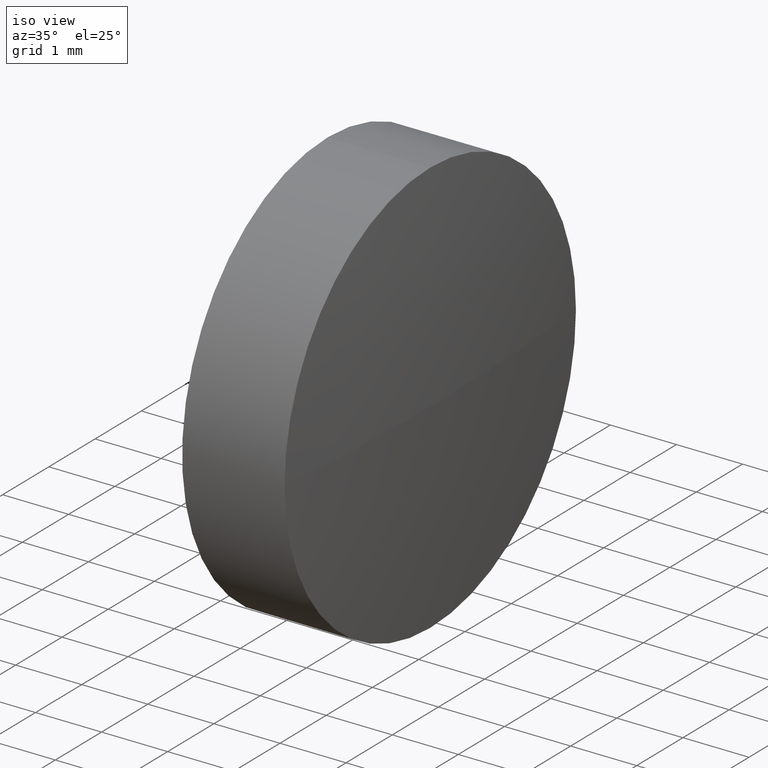
[diagram: clean part render]
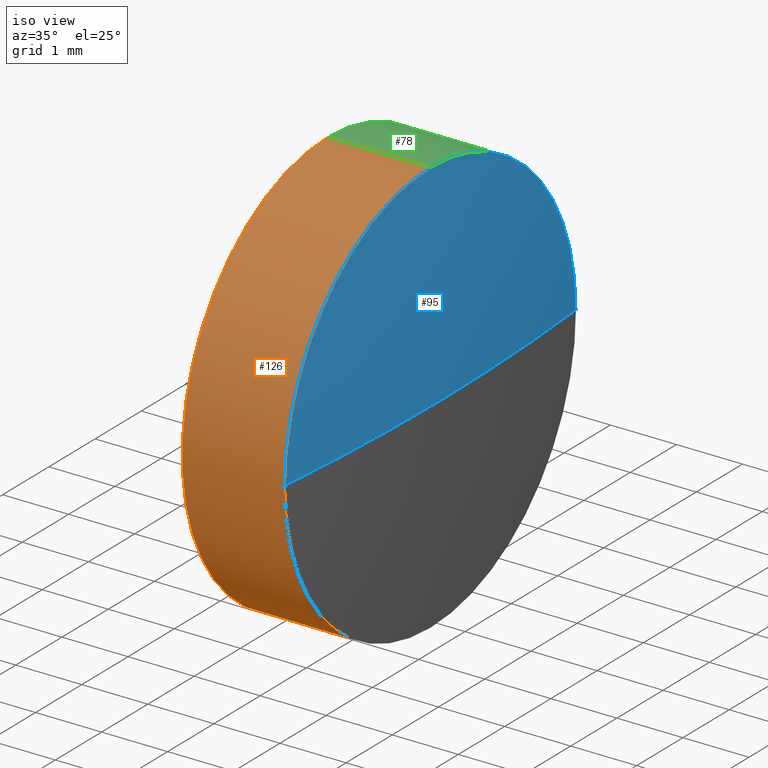
[diagram: same view with three faces highlighted in distinct colors, each labeled with its STEP entity id]
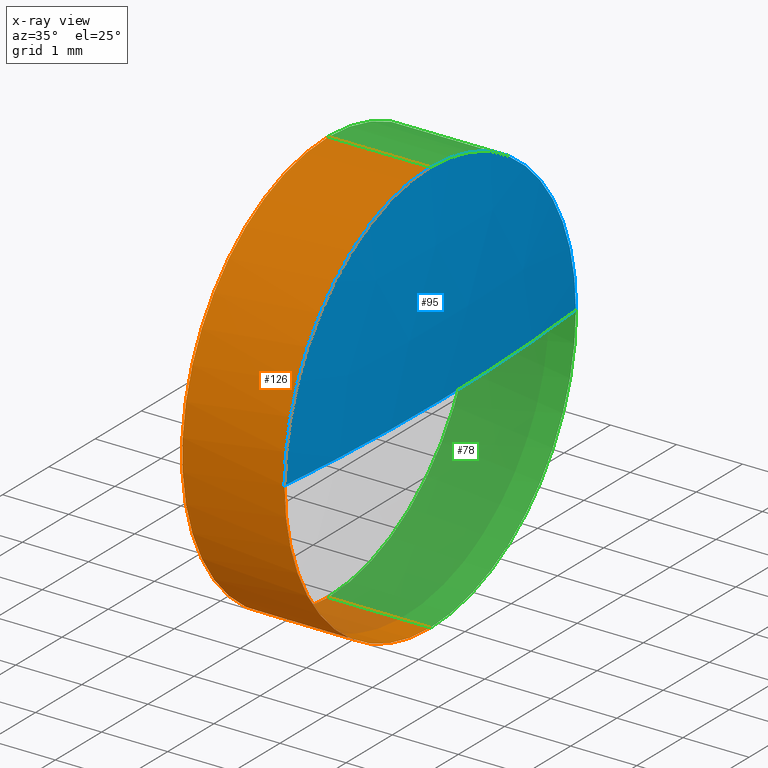
[diagram: x-ray of the same camera — body ghosted, the three highlighted faces saturated]
A machine part, iso view with three faces highlighted in distinct colors.
The next image is the same camera in x-ray (body ghosted, the three faces saturated) — at least one of them is partly hidden behind the body in this view.
Their STEP definitions:

[orange] entity #126 — the highlighted cylindrical surface (partial cylindrical patch) has radius 3.15 mm, axis along (-1, -0, -0).
#3 = LINE ( 'NONE', #32, #106 ) ;
#4 = CARTESIAN_POINT ( 'NONE',  ( 421.2035266146245400, 44.60173696061082200, -3.149999999999999900 ) ) ;
#6 = DIRECTION ( 'NONE',  ( 0.0000000000000000000, 0.0000000000000000000, 1.000000000000000000 ) ) ;
#8 = VERTEX_POINT ( 'NONE', #11 ) ;
#9 = ORIENTED_EDGE ( 'NONE', *, *, #123, .T. ) ;
#10 = EDGE_CURVE ( 'NONE', #87, #16, #42, .T. ) ;
#11 = CARTESIAN_POINT ( 'NONE',  ( 422.7535266146244900, 41.45173696061073100, -3.857637417314108000E-016 ) ) ;
#15 = VERTEX_POINT ( 'NONE', #177 ) ;
#16 = VERTEX_POINT ( 'NONE', #142 ) ;
#18 = DIRECTION ( 'NONE',  ( -1.000000000000000000, -0.0000000000000000000, -0.0000000000000000000 ) ) ;
#23 = AXIS2_PLACEMENT_3D ( 'NONE', #179, #47, #157 ) ;
#28 = CARTESIAN_POINT ( 'NONE',  ( 422.7535266146244900, 44.60173696061082200, -3.149999999999999900 ) ) ;
#29 = CIRCLE ( 'NONE', #127, 3.149999999999999900 ) ;
#32 = CARTESIAN_POINT ( 'NONE',  ( 420.3978162020825400, 44.60173696061082200, -3.149999999999999900 ) ) ;
#33 = VERTEX_POINT ( 'NONE', #28 ) ;
#40 = LINE ( 'NONE', #72, #53 ) ;
#42 = CIRCLE ( 'NONE', #23, 3.149999999999999900 ) ;
#47 = DIRECTION ( 'NONE',  ( -1.000000000000000000, -0.0000000000000000000, -0.0000000000000000000 ) ) ;
#48 = CARTESIAN_POINT ( 'NONE',  ( 422.7535266146244900, 44.60173696061082200, 0.0000000000000000000 ) ) ;
#53 = VECTOR ( 'NONE', #149, 1000.000000000000000 ) ;
#60 = AXIS2_PLACEMENT_3D ( 'NONE', #120, #181, #6 ) ;
#65 = DIRECTION ( 'NONE',  ( 0.0000000000000000000, 0.0000000000000000000, 1.000000000000000000 ) ) ;
#68 = CYLINDRICAL_SURFACE ( 'NONE', #60, 3.149999999999999900 ) ;
#72 = CARTESIAN_POINT ( 'NONE',  ( 420.3978162020825400, 44.60173696061082200, 3.149999999999999900 ) ) ;
#82 = CIRCLE ( 'NONE', #110, 3.149999999999999900 ) ;
#87 = VERTEX_POINT ( 'NONE', #4 ) ;
#88 = CARTESIAN_POINT ( 'NONE',  ( 422.7535266146244900, 44.60173696061082200, 0.0000000000000000000 ) ) ;
#94 = ORIENTED_EDGE ( 'NONE', *, *, #10, .F. ) ;
#96 = ORIENTED_EDGE ( 'NONE', *, *, #150, .T. ) ;
#102 = DIRECTION ( 'NONE',  ( -1.000000000000000000, -0.0000000000000000000, -0.0000000000000000000 ) ) ;
#106 = VECTOR ( 'NONE', #136, 1000.000000000000000 ) ;
#110 = AXIS2_PLACEMENT_3D ( 'NONE', #48, #102, #65 ) ;
#112 = EDGE_CURVE ( 'NONE', #8, #15, #82, .T. ) ;
#115 = FACE_OUTER_BOUND ( 'NONE', #169, .T. ) ;
#119 = ORIENTED_EDGE ( 'NONE', *, *, #172, .F. ) ;
#120 = CARTESIAN_POINT ( 'NONE',  ( 420.3978162020825400, 44.60173696061082200, 0.0000000000000000000 ) ) ;
#123 = EDGE_CURVE ( 'NONE', #33, #8, #29, .T. ) ;
#126 = ADVANCED_FACE ( 'NONE', ( #115 ), #68, .T. ) ;
#127 = AXIS2_PLACEMENT_3D ( 'NONE', #88, #18, #163 ) ;
#135 = ORIENTED_EDGE ( 'NONE', *, *, #112, .T. ) ;
#136 = DIRECTION ( 'NONE',  ( -1.000000000000000000, -0.0000000000000000000, -0.0000000000000000000 ) ) ;
#142 = CARTESIAN_POINT ( 'NONE',  ( 421.2035266146245400, 44.60173696061082200, 3.149999999999999900 ) ) ;
#149 = DIRECTION ( 'NONE',  ( -1.000000000000000000, -0.0000000000000000000, -0.0000000000000000000 ) ) ;
#150 = EDGE_CURVE ( 'NONE', #15, #16, #40, .T. ) ;
#157 = DIRECTION ( 'NONE',  ( 0.0000000000000000000, 0.0000000000000000000, 1.000000000000000000 ) ) ;
#163 = DIRECTION ( 'NONE',  ( 0.0000000000000000000, 0.0000000000000000000, 1.000000000000000000 ) ) ;
#169 = EDGE_LOOP ( 'NONE', ( #119, #9, #135, #96, #94 ) ) ;
#172 = EDGE_CURVE ( 'NONE', #33, #87, #3, .T. ) ;
#177 = CARTESIAN_POINT ( 'NONE',  ( 422.7535266146244900, 44.60173696061082200, 3.149999999999999900 ) ) ;
#179 = CARTESIAN_POINT ( 'NONE',  ( 421.2035266146245400, 44.60173696061082200, 0.0000000000000000000 ) ) ;
#181 = DIRECTION ( 'NONE',  ( -1.000000000000000000, -0.0000000000000000000, -0.0000000000000000000 ) ) ;

[blue] entity #95 — the highlighted spherical surface has radius 33.15 mm.
#1 = AXIS2_PLACEMENT_3D ( 'NONE', #105, #165, #7 ) ;
#7 = DIRECTION ( 'NONE',  ( 0.0000000000000000000, 1.000000000000000000, 1.224646799147353200E-016 ) ) ;
#8 = VERTEX_POINT ( 'NONE', #11 ) ;
#11 = CARTESIAN_POINT ( 'NONE',  ( 422.7535266146244900, 41.45173696061073100, -3.857637417314108000E-016 ) ) ;
#14 = FACE_OUTER_BOUND ( 'NONE', #90, .T. ) ;
#15 = VERTEX_POINT ( 'NONE', #177 ) ;
#20 = ORIENTED_EDGE ( 'NONE', *, *, #140, .F. ) ;
#25 = ORIENTED_EDGE ( 'NONE', *, *, #103, .T. ) ;
#27 = AXIS2_PLACEMENT_3D ( 'NONE', #175, #80, #50 ) ;
#37 = DIRECTION ( 'NONE',  ( 1.000000000000000000, 0.0000000000000000000, 0.0000000000000000000 ) ) ;
#39 = AXIS2_PLACEMENT_3D ( 'NONE', #183, #43, #89 ) ;
#43 = DIRECTION ( 'NONE',  ( -1.000000000000000000, -0.0000000000000000000, -0.0000000000000000000 ) ) ;
#48 = CARTESIAN_POINT ( 'NONE',  ( 422.7535266146244900, 44.60173696061082200, 0.0000000000000000000 ) ) ;
#49 = VERTEX_POINT ( 'NONE', #129 ) ;
#50 = DIRECTION ( 'NONE',  ( 0.0000000000000000000, 1.000000000000000000, 0.0000000000000000000 ) ) ;
#64 = CIRCLE ( 'NONE', #39, 3.149999999999999900 ) ;
#65 = DIRECTION ( 'NONE',  ( 0.0000000000000000000, 0.0000000000000000000, 1.000000000000000000 ) ) ;
#80 = DIRECTION ( 'NONE',  ( -0.0000000000000000000, 0.0000000000000000000, -1.000000000000000000 ) ) ;
#82 = CIRCLE ( 'NONE', #110, 3.149999999999999900 ) ;
#89 = DIRECTION ( 'NONE',  ( 0.0000000000000000000, 0.0000000000000000000, 1.000000000000000000 ) ) ;
#90 = EDGE_LOOP ( 'NONE', ( #20, #25, #174, #122 ) ) ;
#93 = CIRCLE ( 'NONE', #1, 33.15000000000124900 ) ;
#95 = ADVANCED_FACE ( 'NONE', ( #14 ), #124, .T. ) ;
#97 = AXIS2_PLACEMENT_3D ( 'NONE', #116, #130, #37 ) ;
#102 = DIRECTION ( 'NONE',  ( -1.000000000000000000, -0.0000000000000000000, -0.0000000000000000000 ) ) ;
#103 = EDGE_CURVE ( 'NONE', #161, #49, #154, .T. ) ;
#105 = CARTESIAN_POINT ( 'NONE',  ( 389.7535266146232400, 44.60173696061069400, 0.0000000000000000000 ) ) ;
#110 = AXIS2_PLACEMENT_3D ( 'NONE', #48, #102, #65 ) ;
#112 = EDGE_CURVE ( 'NONE', #8, #15, #82, .T. ) ;
#116 = CARTESIAN_POINT ( 'NONE',  ( 389.7535266146232400, 44.60173696061069400, 0.0000000000000000000 ) ) ;
#122 = ORIENTED_EDGE ( 'NONE', *, *, #112, .F. ) ;
#124 = SPHERICAL_SURFACE ( 'NONE', #27, 33.15000000000124900 ) ;
#129 = CARTESIAN_POINT ( 'NONE',  ( 422.7535266146244900, 47.75173696061077800, 0.0000000000000000000 ) ) ;
#130 = DIRECTION ( 'NONE',  ( -0.0000000000000000000, 0.0000000000000000000, 1.000000000000000000 ) ) ;
#140 = EDGE_CURVE ( 'NONE', #161, #8, #93, .T. ) ;
#154 = CIRCLE ( 'NONE', #97, 33.15000000000123500 ) ;
#161 = VERTEX_POINT ( 'NONE', #167 ) ;
#165 = DIRECTION ( 'NONE',  ( 0.0000000000000000000, 1.224646799147353200E-016, -1.000000000000000000 ) ) ;
#167 = CARTESIAN_POINT ( 'NONE',  ( 422.9035266146244700, 44.60173696061069400, 0.0000000000000000000 ) ) ;
#174 = ORIENTED_EDGE ( 'NONE', *, *, #182, .F. ) ;
#175 = CARTESIAN_POINT ( 'NONE',  ( 389.7535266146232400, 44.60173696061069400, 0.0000000000000000000 ) ) ;
#177 = CARTESIAN_POINT ( 'NONE',  ( 422.7535266146244900, 44.60173696061082200, 3.149999999999999900 ) ) ;
#182 = EDGE_CURVE ( 'NONE', #15, #49, #64, .T. ) ;
#183 = CARTESIAN_POINT ( 'NONE',  ( 422.7535266146244900, 44.60173696061082200, 0.0000000000000000000 ) ) ;

[green] entity #78 — the highlighted cylindrical surface (partial cylindrical patch) has radius 3.15 mm, axis along (-1, -0, -0).
#3 = LINE ( 'NONE', #32, #106 ) ;
#4 = CARTESIAN_POINT ( 'NONE',  ( 421.2035266146245400, 44.60173696061082200, -3.149999999999999900 ) ) ;
#15 = VERTEX_POINT ( 'NONE', #177 ) ;
#16 = VERTEX_POINT ( 'NONE', #142 ) ;
#21 = CARTESIAN_POINT ( 'NONE',  ( 422.7535266146244900, 44.60173696061082200, 0.0000000000000000000 ) ) ;
#22 = CARTESIAN_POINT ( 'NONE',  ( 421.2035266146245400, 44.60173696061082200, 0.0000000000000000000 ) ) ;
#28 = CARTESIAN_POINT ( 'NONE',  ( 422.7535266146244900, 44.60173696061082200, -3.149999999999999900 ) ) ;
#32 = CARTESIAN_POINT ( 'NONE',  ( 420.3978162020825400, 44.60173696061082200, -3.149999999999999900 ) ) ;
#33 = VERTEX_POINT ( 'NONE', #28 ) ;
#36 = CYLINDRICAL_SURFACE ( 'NONE', #84, 3.149999999999999900 ) ;
#39 = AXIS2_PLACEMENT_3D ( 'NONE', #183, #43, #89 ) ;
#40 = LINE ( 'NONE', #72, #53 ) ;
#43 = DIRECTION ( 'NONE',  ( -1.000000000000000000, -0.0000000000000000000, -0.0000000000000000000 ) ) ;
#46 = CIRCLE ( 'NONE', #73, 3.149999999999999900 ) ;
#49 = VERTEX_POINT ( 'NONE', #129 ) ;
#53 = VECTOR ( 'NONE', #149, 1000.000000000000000 ) ;
#54 = ORIENTED_EDGE ( 'NONE', *, *, #150, .F. ) ;
#55 = DIRECTION ( 'NONE',  ( 0.0000000000000000000, 0.0000000000000000000, 1.000000000000000000 ) ) ;
#56 = DIRECTION ( 'NONE',  ( -1.000000000000000000, -0.0000000000000000000, -0.0000000000000000000 ) ) ;
#64 = CIRCLE ( 'NONE', #39, 3.149999999999999900 ) ;
#67 = ORIENTED_EDGE ( 'NONE', *, *, #143, .T. ) ;
#71 = DIRECTION ( 'NONE',  ( 0.0000000000000000000, 0.0000000000000000000, 1.000000000000000000 ) ) ;
#72 = CARTESIAN_POINT ( 'NONE',  ( 420.3978162020825400, 44.60173696061082200, 3.149999999999999900 ) ) ;
#73 = AXIS2_PLACEMENT_3D ( 'NONE', #22, #56, #71 ) ;
#78 = ADVANCED_FACE ( 'NONE', ( #86 ), #36, .T. ) ;
#84 = AXIS2_PLACEMENT_3D ( 'NONE', #178, #146, #98 ) ;
#86 = FACE_OUTER_BOUND ( 'NONE', #186, .T. ) ;
#87 = VERTEX_POINT ( 'NONE', #4 ) ;
#89 = DIRECTION ( 'NONE',  ( 0.0000000000000000000, 0.0000000000000000000, 1.000000000000000000 ) ) ;
#98 = DIRECTION ( 'NONE',  ( 0.0000000000000000000, 0.0000000000000000000, 1.000000000000000000 ) ) ;
#104 = ORIENTED_EDGE ( 'NONE', *, *, #172, .T. ) ;
#106 = VECTOR ( 'NONE', #136, 1000.000000000000000 ) ;
#111 = CIRCLE ( 'NONE', #138, 3.149999999999999900 ) ;
#121 = DIRECTION ( 'NONE',  ( -1.000000000000000000, -0.0000000000000000000, -0.0000000000000000000 ) ) ;
#129 = CARTESIAN_POINT ( 'NONE',  ( 422.7535266146244900, 47.75173696061077800, 0.0000000000000000000 ) ) ;
#136 = DIRECTION ( 'NONE',  ( -1.000000000000000000, -0.0000000000000000000, -0.0000000000000000000 ) ) ;
#138 = AXIS2_PLACEMENT_3D ( 'NONE', #21, #121, #55 ) ;
#141 = ORIENTED_EDGE ( 'NONE', *, *, #182, .T. ) ;
#142 = CARTESIAN_POINT ( 'NONE',  ( 421.2035266146245400, 44.60173696061082200, 3.149999999999999900 ) ) ;
#143 = EDGE_CURVE ( 'NONE', #49, #33, #111, .T. ) ;
#146 = DIRECTION ( 'NONE',  ( -1.000000000000000000, -0.0000000000000000000, -0.0000000000000000000 ) ) ;
#149 = DIRECTION ( 'NONE',  ( -1.000000000000000000, -0.0000000000000000000, -0.0000000000000000000 ) ) ;
#150 = EDGE_CURVE ( 'NONE', #15, #16, #40, .T. ) ;
#159 = EDGE_CURVE ( 'NONE', #16, #87, #46, .T. ) ;
#164 = ORIENTED_EDGE ( 'NONE', *, *, #159, .F. ) ;
#172 = EDGE_CURVE ( 'NONE', #33, #87, #3, .T. ) ;
#177 = CARTESIAN_POINT ( 'NONE',  ( 422.7535266146244900, 44.60173696061082200, 3.149999999999999900 ) ) ;
#178 = CARTESIAN_POINT ( 'NONE',  ( 420.3978162020825400, 44.60173696061082200, 0.0000000000000000000 ) ) ;
#182 = EDGE_CURVE ( 'NONE', #15, #49, #64, .T. ) ;
#183 = CARTESIAN_POINT ( 'NONE',  ( 422.7535266146244900, 44.60173696061082200, 0.0000000000000000000 ) ) ;
#186 = EDGE_LOOP ( 'NONE', ( #67, #104, #164, #54, #141 ) ) ;